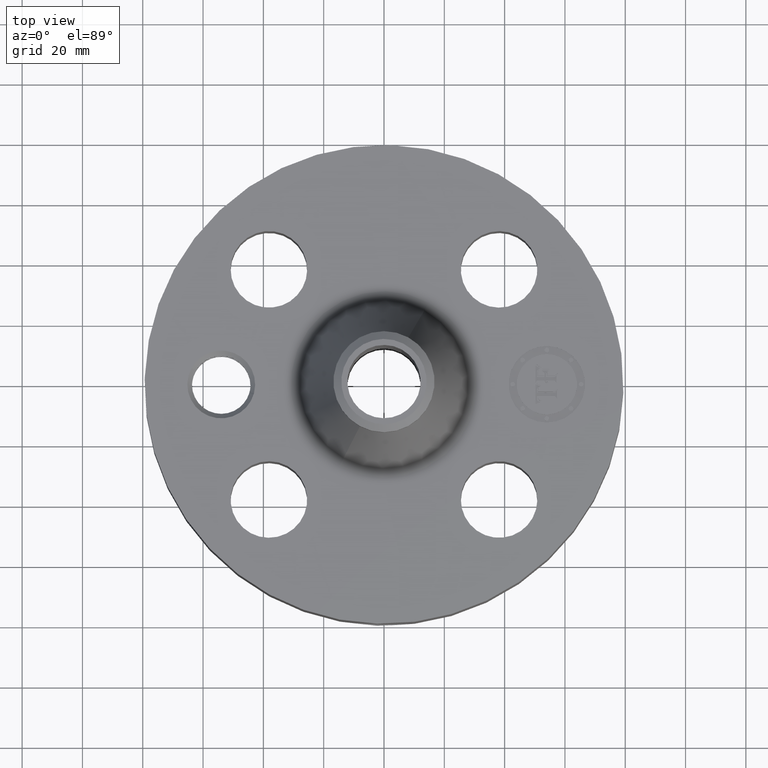
[diagram: clean part render]
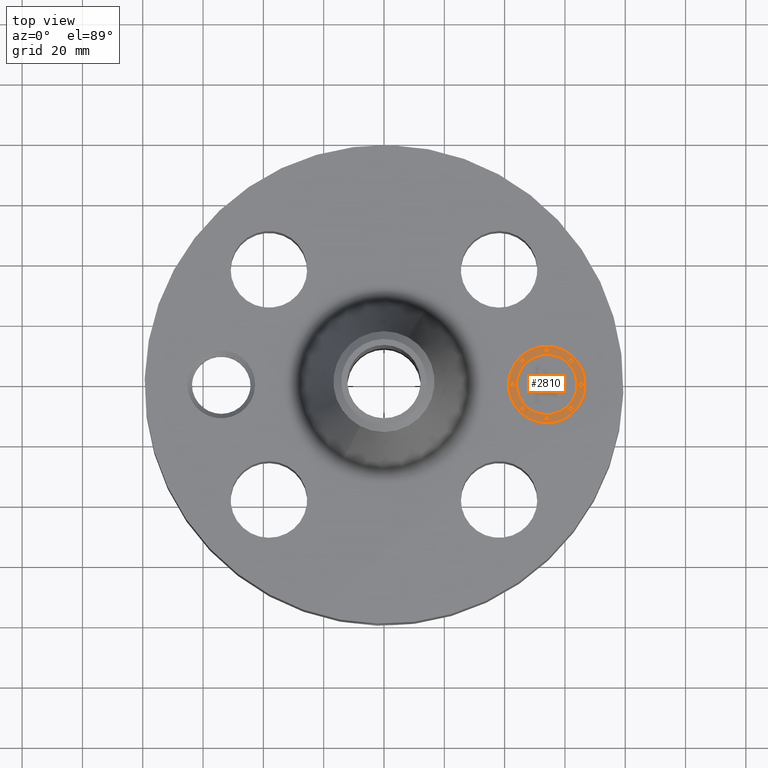
[diagram: same view with one face highlighted and labeled with its STEP entity id]
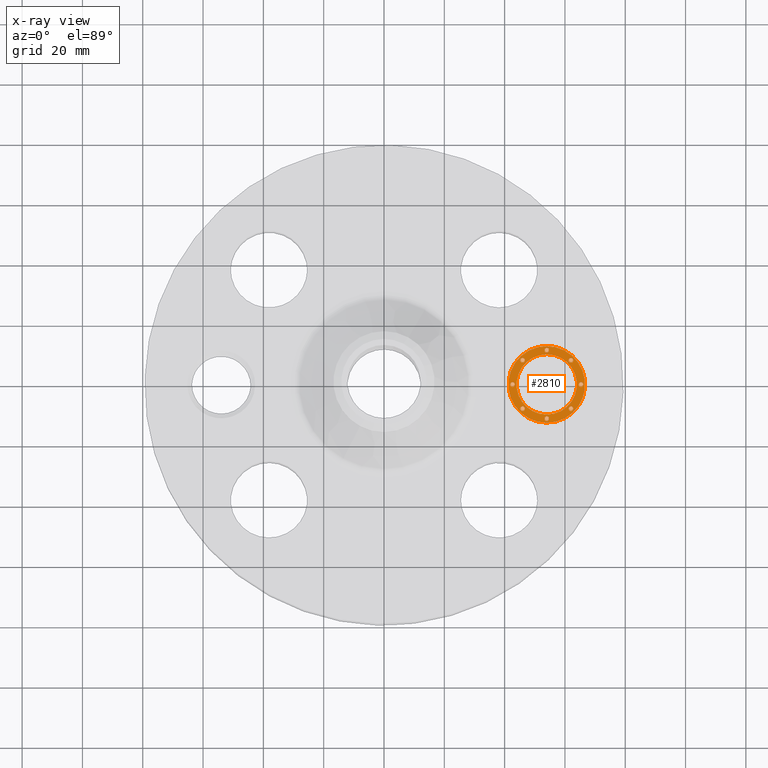
[diagram: x-ray of the same camera — body ghosted, the highlighted face saturated]
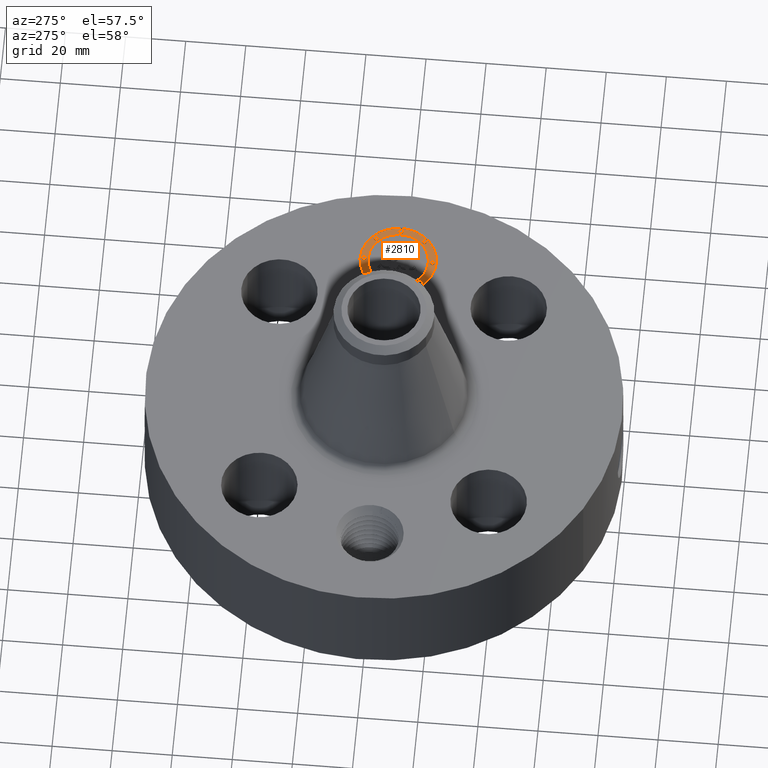
[diagram: same view with one face highlighted and labeled with its STEP entity id]
A machine part, top view. The second image highlights one B-rep face of the part: STEP entity #2810.
The next image is the same camera in x-ray: the body ghosted, the highlighted face saturated — about 0% of this face is hidden behind the body in this view.
A second angle (auxiliary view) of the same face is appended — the face is thin or edge-on in the first view.
In plain terms, the highlighted planar face has unit normal (0, 0, 1).
Its self-contained STEP definition (entity closure, byte-faithful):
#1969=AXIS2_PLACEMENT_3D('Circle Axis2P3D',#1967,#1968,$) ;
#1996=AXIS2_PLACEMENT_3D('Circle Axis2P3D',#1994,#1995,$) ;
#2642=AXIS2_PLACEMENT_3D('Plane Axis2P3D',#2639,#2640,#2641) ;
#2650=AXIS2_PLACEMENT_3D('Circle Axis2P3D',#2648,#2649,$) ;
#2659=AXIS2_PLACEMENT_3D('Circle Axis2P3D',#2657,#2658,$) ;
#2668=AXIS2_PLACEMENT_3D('Circle Axis2P3D',#2666,#2667,$) ;
#2677=AXIS2_PLACEMENT_3D('Circle Axis2P3D',#2675,#2676,$) ;
#2686=AXIS2_PLACEMENT_3D('Circle Axis2P3D',#2684,#2685,$) ;
#2695=AXIS2_PLACEMENT_3D('Circle Axis2P3D',#2693,#2694,$) ;
#2704=AXIS2_PLACEMENT_3D('Circle Axis2P3D',#2702,#2703,$) ;
#2713=AXIS2_PLACEMENT_3D('Circle Axis2P3D',#2711,#2712,$) ;
#2722=AXIS2_PLACEMENT_3D('Circle Axis2P3D',#2720,#2721,$) ;
#2731=AXIS2_PLACEMENT_3D('Circle Axis2P3D',#2729,#2730,$) ;
#2740=AXIS2_PLACEMENT_3D('Circle Axis2P3D',#2738,#2739,$) ;
#2749=AXIS2_PLACEMENT_3D('Circle Axis2P3D',#2747,#2748,$) ;
#2758=AXIS2_PLACEMENT_3D('Circle Axis2P3D',#2756,#2757,$) ;
#2767=AXIS2_PLACEMENT_3D('Circle Axis2P3D',#2765,#2766,$) ;
#2776=AXIS2_PLACEMENT_3D('Circle Axis2P3D',#2774,#2775,$) ;
#2785=AXIS2_PLACEMENT_3D('Circle Axis2P3D',#2783,#2784,$) ;
#2794=AXIS2_PLACEMENT_3D('Circle Axis2P3D',#2792,#2793,$) ;
#2803=AXIS2_PLACEMENT_3D('Circle Axis2P3D',#2801,#2802,$) ;
#1964=CARTESIAN_POINT('Vertex',(2.12500000001,-0.499999995002,1.73500000001)) ;
#1967=CARTESIAN_POINT('Axis2P3D Location',(2.12500000001,-5.31982488653E-015,1.73500000001)) ;
#1971=CARTESIAN_POINT('Vertex',(2.12500000001,0.499999995002,1.73500000001)) ;
#1994=CARTESIAN_POINT('Axis2P3D Location',(2.12500000001,-5.31982488653E-015,1.73500000001)) ;
#2639=CARTESIAN_POINT('Axis2P3D Location',(0.,0.,1.73500000001)) ;
#2648=CARTESIAN_POINT('Axis2P3D Location',(2.12500000001,-5.31982488653E-015,1.73500000001)) ;
#2652=CARTESIAN_POINT('Vertex',(2.12500000001,-0.393939390002,1.73500000001)) ;
#2654=CARTESIAN_POINT('Vertex',(2.12500000001,0.393939390002,1.73500000001)) ;
#2657=CARTESIAN_POINT('Axis2P3D Location',(2.12500000001,-5.31982488653E-015,1.73500000001)) ;
#2666=CARTESIAN_POINT('Axis2P3D Location',(1.67803030751,-6.59137593995E-015,1.73500000001)) ;
#2670=CARTESIAN_POINT('Vertex',(1.67803030751,-0.0303030300001,1.73500000001)) ;
#2672=CARTESIAN_POINT('Vertex',(1.67803030751,0.0303030300001,1.73500000001)) ;
#2675=CARTESIAN_POINT('Axis2P3D Location',(1.67803030751,-6.59137593995E-015,1.73500000001)) ;
#2684=CARTESIAN_POINT('Axis2P3D Location',(2.12500000001,0.446969692502,1.73500000001)) ;
#2688=CARTESIAN_POINT('Vertex',(2.12500000001,0.416666662502,1.73500000001)) ;
#2690=CARTESIAN_POINT('Vertex',(2.12500000001,0.477272722502,1.73500000001)) ;
#2693=CARTESIAN_POINT('Axis2P3D Location',(2.12500000001,0.446969692502,1.73500000001)) ;
#2702=CARTESIAN_POINT('Axis2P3D Location',(1.80894469946,0.316055300553,1.73500000001)) ;
#2706=CARTESIAN_POINT('Vertex',(1.80894469946,0.285752270553,1.73500000001)) ;
#2708=CARTESIAN_POINT('Vertex',(1.80894469946,0.346358330553,1.73500000001)) ;
#2711=CARTESIAN_POINT('Axis2P3D Location',(1.80894469946,0.316055300553,1.73500000001)) ;
#2720=CARTESIAN_POINT('Axis2P3D Location',(2.57196969251,6.40670149507E-015,1.73500000001)) ;
#2724=CARTESIAN_POINT('Vertex',(2.57196969251,-0.0303030300001,1.73500000001)) ;
#2726=CARTESIAN_POINT('Vertex',(2.57196969251,0.0303030300001,1.73500000001)) ;
#2729=CARTESIAN_POINT('Axis2P3D Location',(2.57196969251,6.40670149507E-015,1.73500000001)) ;
#2738=CARTESIAN_POINT('Axis2P3D Location',(2.44105530056,0.316055300553,1.73500000001)) ;
#2742=CARTESIAN_POINT('Vertex',(2.44105530056,0.285752270553,1.73500000001)) ;
#2744=CARTESIAN_POINT('Vertex',(2.44105530056,0.346358330553,1.73500000001)) ;
#2747=CARTESIAN_POINT('Axis2P3D Location',(2.44105530056,0.316055300553,1.73500000001)) ;
#2756=CARTESIAN_POINT('Axis2P3D Location',(2.12500000001,-0.446969692502,1.73500000001)) ;
#2760=CARTESIAN_POINT('Vertex',(2.12500000001,-0.416666662502,1.73500000001)) ;
#2762=CARTESIAN_POINT('Vertex',(2.12500000001,-0.477272722502,1.73500000001)) ;
#2765=CARTESIAN_POINT('Axis2P3D Location',(2.12500000001,-0.446969692502,1.73500000001)) ;
#2774=CARTESIAN_POINT('Axis2P3D Location',(1.80894469946,-0.316055300553,1.73500000001)) ;
#2778=CARTESIAN_POINT('Vertex',(1.80894469946,-0.285752270553,1.73500000001)) ;
#2780=CARTESIAN_POINT('Vertex',(1.80894469946,-0.346358330553,1.73500000001)) ;
#2783=CARTESIAN_POINT('Axis2P3D Location',(1.80894469946,-0.316055300553,1.73500000001)) ;
#2792=CARTESIAN_POINT('Axis2P3D Location',(2.44105530056,-0.316055300553,1.73500000001)) ;
#2796=CARTESIAN_POINT('Vertex',(2.44105530056,-0.285752270553,1.73500000001)) ;
#2798=CARTESIAN_POINT('Vertex',(2.44105530056,-0.346358330553,1.73500000001)) ;
#2801=CARTESIAN_POINT('Axis2P3D Location',(2.44105530056,-0.316055300553,1.73500000001)) ;
#1968=DIRECTION('Axis2P3D Direction',(0.,0.,0.0393700787402)) ;
#1995=DIRECTION('Axis2P3D Direction',(0.,0.,0.0393700787402)) ;
#2640=DIRECTION('Axis2P3D Direction',(0.,0.,0.0393700787402)) ;
#2641=DIRECTION('Axis2P3D XDirection',(0.0393700787402,0.,0.)) ;
#2649=DIRECTION('Axis2P3D Direction',(0.,0.,0.0393700787402)) ;
#2658=DIRECTION('Axis2P3D Direction',(0.,0.,0.0393700787402)) ;
#2667=DIRECTION('Axis2P3D Direction',(0.,0.,0.0393700787402)) ;
#2676=DIRECTION('Axis2P3D Direction',(0.,0.,0.0393700787402)) ;
#2685=DIRECTION('Axis2P3D Direction',(0.,0.,0.0393700787402)) ;
#2694=DIRECTION('Axis2P3D Direction',(0.,0.,0.0393700787402)) ;
#2703=DIRECTION('Axis2P3D Direction',(0.,0.,0.0393700787402)) ;
#2712=DIRECTION('Axis2P3D Direction',(0.,0.,0.0393700787402)) ;
#2721=DIRECTION('Axis2P3D Direction',(0.,0.,0.0393700787402)) ;
#2730=DIRECTION('Axis2P3D Direction',(0.,0.,0.0393700787402)) ;
#2739=DIRECTION('Axis2P3D Direction',(0.,0.,0.0393700787402)) ;
#2748=DIRECTION('Axis2P3D Direction',(0.,0.,0.0393700787402)) ;
#2757=DIRECTION('Axis2P3D Direction',(0.,0.,0.0393700787402)) ;
#2766=DIRECTION('Axis2P3D Direction',(0.,0.,0.0393700787402)) ;
#2775=DIRECTION('Axis2P3D Direction',(0.,0.,0.0393700787402)) ;
#2784=DIRECTION('Axis2P3D Direction',(0.,0.,0.0393700787402)) ;
#2793=DIRECTION('Axis2P3D Direction',(0.,0.,0.0393700787402)) ;
#2802=DIRECTION('Axis2P3D Direction',(0.,0.,0.0393700787402)) ;
#2645=ORIENTED_EDGE('',*,*,#1973,.T.) ;
#2646=ORIENTED_EDGE('',*,*,#1998,.T.) ;
#2663=ORIENTED_EDGE('',*,*,#2656,.F.) ;
#2664=ORIENTED_EDGE('',*,*,#2661,.F.) ;
#2681=ORIENTED_EDGE('',*,*,#2674,.F.) ;
#2682=ORIENTED_EDGE('',*,*,#2679,.F.) ;
#2699=ORIENTED_EDGE('',*,*,#2692,.F.) ;
#2700=ORIENTED_EDGE('',*,*,#2697,.F.) ;
#2717=ORIENTED_EDGE('',*,*,#2710,.F.) ;
#2718=ORIENTED_EDGE('',*,*,#2715,.F.) ;
#2735=ORIENTED_EDGE('',*,*,#2728,.F.) ;
#2736=ORIENTED_EDGE('',*,*,#2733,.F.) ;
#2753=ORIENTED_EDGE('',*,*,#2746,.F.) ;
#2754=ORIENTED_EDGE('',*,*,#2751,.F.) ;
#2771=ORIENTED_EDGE('',*,*,#2764,.F.) ;
#2772=ORIENTED_EDGE('',*,*,#2769,.F.) ;
#2789=ORIENTED_EDGE('',*,*,#2782,.F.) ;
#2790=ORIENTED_EDGE('',*,*,#2787,.F.) ;
#2807=ORIENTED_EDGE('',*,*,#2800,.F.) ;
#2808=ORIENTED_EDGE('',*,*,#2805,.F.) ;
#2665=FACE_BOUND('',#2662,.T.) ;
#2683=FACE_BOUND('',#2680,.T.) ;
#2701=FACE_BOUND('',#2698,.T.) ;
#2719=FACE_BOUND('',#2716,.T.) ;
#2737=FACE_BOUND('',#2734,.T.) ;
#2755=FACE_BOUND('',#2752,.T.) ;
#2773=FACE_BOUND('',#2770,.T.) ;
#2791=FACE_BOUND('',#2788,.T.) ;
#2809=FACE_BOUND('',#2806,.T.) ;
#2810=ADVANCED_FACE('PartBody',(#2647,#2665,#2683,#2701,#2719,#2737,#2755,#2773,#2791,#2809),#2643,.T.) ;
#1970=CIRCLE('generated circle',#1969,0.499999995002) ;
#1997=CIRCLE('generated circle',#1996,0.499999995002) ;
#2651=CIRCLE('generated circle',#2650,0.393939390002) ;
#2660=CIRCLE('generated circle',#2659,0.393939390002) ;
#2669=CIRCLE('generated circle',#2668,0.0303030300001) ;
#2678=CIRCLE('generated circle',#2677,0.0303030300001) ;
#2687=CIRCLE('generated circle',#2686,0.0303030300001) ;
#2696=CIRCLE('generated circle',#2695,0.0303030300001) ;
#2705=CIRCLE('generated circle',#2704,0.0303030300001) ;
#2714=CIRCLE('generated circle',#2713,0.0303030300001) ;
#2723=CIRCLE('generated circle',#2722,0.0303030300001) ;
#2732=CIRCLE('generated circle',#2731,0.0303030300001) ;
#2741=CIRCLE('generated circle',#2740,0.0303030300001) ;
#2750=CIRCLE('generated circle',#2749,0.0303030300001) ;
#2759=CIRCLE('generated circle',#2758,0.0303030300001) ;
#2768=CIRCLE('generated circle',#2767,0.0303030300001) ;
#2777=CIRCLE('generated circle',#2776,0.0303030300001) ;
#2786=CIRCLE('generated circle',#2785,0.0303030300001) ;
#2795=CIRCLE('generated circle',#2794,0.0303030300001) ;
#2804=CIRCLE('generated circle',#2803,0.0303030300001) ;
#1973=EDGE_CURVE('',#1972,#1965,#1970,.T.) ;
#1998=EDGE_CURVE('',#1965,#1972,#1997,.T.) ;
#2656=EDGE_CURVE('',#2653,#2655,#2651,.T.) ;
#2661=EDGE_CURVE('',#2655,#2653,#2660,.T.) ;
#2674=EDGE_CURVE('',#2671,#2673,#2669,.T.) ;
#2679=EDGE_CURVE('',#2673,#2671,#2678,.T.) ;
#2692=EDGE_CURVE('',#2689,#2691,#2687,.T.) ;
#2697=EDGE_CURVE('',#2691,#2689,#2696,.T.) ;
#2710=EDGE_CURVE('',#2707,#2709,#2705,.T.) ;
#2715=EDGE_CURVE('',#2709,#2707,#2714,.T.) ;
#2728=EDGE_CURVE('',#2725,#2727,#2723,.T.) ;
#2733=EDGE_CURVE('',#2727,#2725,#2732,.T.) ;
#2746=EDGE_CURVE('',#2743,#2745,#2741,.T.) ;
#2751=EDGE_CURVE('',#2745,#2743,#2750,.T.) ;
#2764=EDGE_CURVE('',#2761,#2763,#2759,.T.) ;
#2769=EDGE_CURVE('',#2763,#2761,#2768,.T.) ;
#2782=EDGE_CURVE('',#2779,#2781,#2777,.T.) ;
#2787=EDGE_CURVE('',#2781,#2779,#2786,.T.) ;
#2800=EDGE_CURVE('',#2797,#2799,#2795,.T.) ;
#2805=EDGE_CURVE('',#2799,#2797,#2804,.T.) ;
#2644=EDGE_LOOP('',(#2645,#2646)) ;
#2662=EDGE_LOOP('',(#2663,#2664)) ;
#2680=EDGE_LOOP('',(#2681,#2682)) ;
#2698=EDGE_LOOP('',(#2699,#2700)) ;
#2716=EDGE_LOOP('',(#2717,#2718)) ;
#2734=EDGE_LOOP('',(#2735,#2736)) ;
#2752=EDGE_LOOP('',(#2753,#2754)) ;
#2770=EDGE_LOOP('',(#2771,#2772)) ;
#2788=EDGE_LOOP('',(#2789,#2790)) ;
#2806=EDGE_LOOP('',(#2807,#2808)) ;
#2647=FACE_OUTER_BOUND('',#2644,.T.) ;
#2643=PLANE('',#2642) ;
#1965=VERTEX_POINT('',#1964) ;
#1972=VERTEX_POINT('',#1971) ;
#2653=VERTEX_POINT('',#2652) ;
#2655=VERTEX_POINT('',#2654) ;
#2671=VERTEX_POINT('',#2670) ;
#2673=VERTEX_POINT('',#2672) ;
#2689=VERTEX_POINT('',#2688) ;
#2691=VERTEX_POINT('',#2690) ;
#2707=VERTEX_POINT('',#2706) ;
#2709=VERTEX_POINT('',#2708) ;
#2725=VERTEX_POINT('',#2724) ;
#2727=VERTEX_POINT('',#2726) ;
#2743=VERTEX_POINT('',#2742) ;
#2745=VERTEX_POINT('',#2744) ;
#2761=VERTEX_POINT('',#2760) ;
#2763=VERTEX_POINT('',#2762) ;
#2779=VERTEX_POINT('',#2778) ;
#2781=VERTEX_POINT('',#2780) ;
#2797=VERTEX_POINT('',#2796) ;
#2799=VERTEX_POINT('',#2798) ;